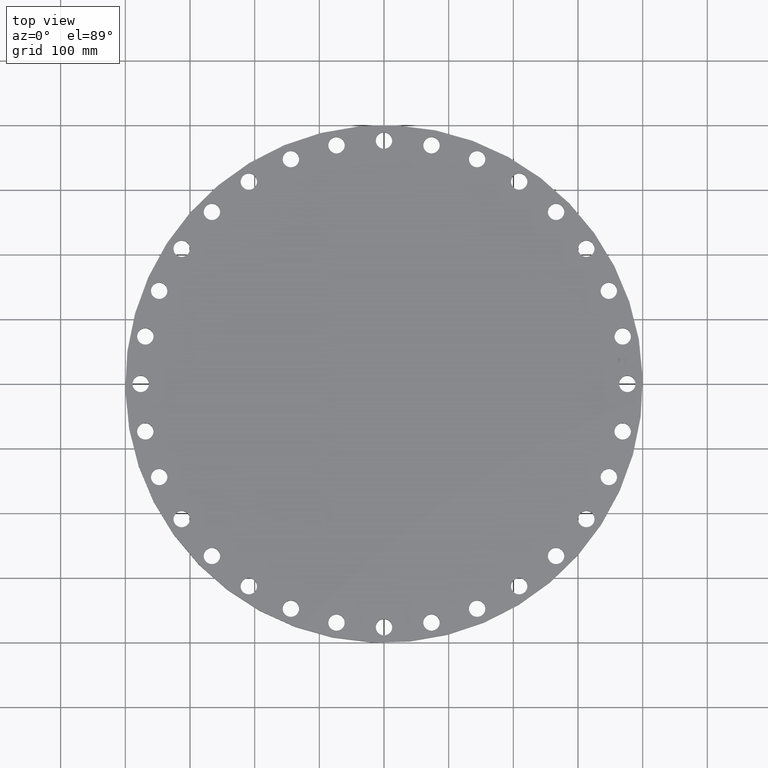
[diagram: clean part render]
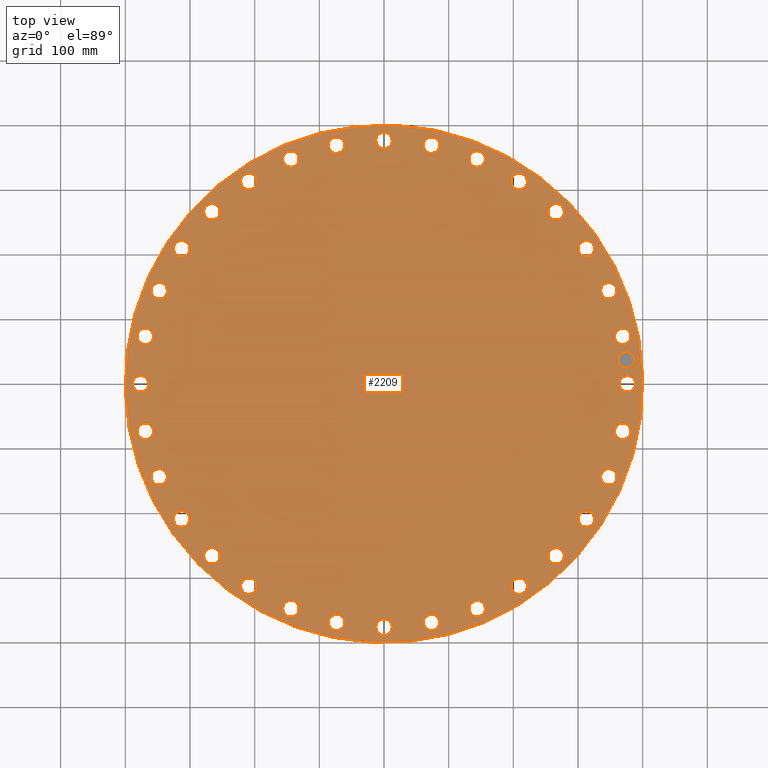
[diagram: same view with one face highlighted and labeled with its STEP entity id]
A machine part, top view. The second image highlights one B-rep face of the part: STEP entity #2209.
In plain terms, the highlighted planar face has unit normal (0, 0, -1).
Its self-contained STEP definition (entity closure, byte-faithful):
#65=AXIS2_PLACEMENT_3D('Circle Axis2P3D',#63,#64,$) ;
#82=AXIS2_PLACEMENT_3D('Circle Axis2P3D',#80,#81,$) ;
#115=AXIS2_PLACEMENT_3D('Circle Axis2P3D',#113,#114,$) ;
#139=AXIS2_PLACEMENT_3D('Circle Axis2P3D',#137,#138,$) ;
#742=AXIS2_PLACEMENT_3D('Circle Axis2P3D',#740,#741,$) ;
#754=AXIS2_PLACEMENT_3D('Circle Axis2P3D',#752,#753,$) ;
#785=AXIS2_PLACEMENT_3D('Circle Axis2P3D',#783,#784,$) ;
#797=AXIS2_PLACEMENT_3D('Circle Axis2P3D',#795,#796,$) ;
#828=AXIS2_PLACEMENT_3D('Circle Axis2P3D',#826,#827,$) ;
#840=AXIS2_PLACEMENT_3D('Circle Axis2P3D',#838,#839,$) ;
#871=AXIS2_PLACEMENT_3D('Circle Axis2P3D',#869,#870,$) ;
#883=AXIS2_PLACEMENT_3D('Circle Axis2P3D',#881,#882,$) ;
#914=AXIS2_PLACEMENT_3D('Circle Axis2P3D',#912,#913,$) ;
#926=AXIS2_PLACEMENT_3D('Circle Axis2P3D',#924,#925,$) ;
#957=AXIS2_PLACEMENT_3D('Circle Axis2P3D',#955,#956,$) ;
#969=AXIS2_PLACEMENT_3D('Circle Axis2P3D',#967,#968,$) ;
#1000=AXIS2_PLACEMENT_3D('Circle Axis2P3D',#998,#999,$) ;
#1012=AXIS2_PLACEMENT_3D('Circle Axis2P3D',#1010,#1011,$) ;
#1043=AXIS2_PLACEMENT_3D('Circle Axis2P3D',#1041,#1042,$) ;
#1055=AXIS2_PLACEMENT_3D('Circle Axis2P3D',#1053,#1054,$) ;
#1086=AXIS2_PLACEMENT_3D('Circle Axis2P3D',#1084,#1085,$) ;
#1098=AXIS2_PLACEMENT_3D('Circle Axis2P3D',#1096,#1097,$) ;
#1129=AXIS2_PLACEMENT_3D('Circle Axis2P3D',#1127,#1128,$) ;
#1141=AXIS2_PLACEMENT_3D('Circle Axis2P3D',#1139,#1140,$) ;
#1172=AXIS2_PLACEMENT_3D('Circle Axis2P3D',#1170,#1171,$) ;
#1184=AXIS2_PLACEMENT_3D('Circle Axis2P3D',#1182,#1183,$) ;
#1215=AXIS2_PLACEMENT_3D('Circle Axis2P3D',#1213,#1214,$) ;
#1227=AXIS2_PLACEMENT_3D('Circle Axis2P3D',#1225,#1226,$) ;
#1258=AXIS2_PLACEMENT_3D('Circle Axis2P3D',#1256,#1257,$) ;
#1270=AXIS2_PLACEMENT_3D('Circle Axis2P3D',#1268,#1269,$) ;
#1301=AXIS2_PLACEMENT_3D('Circle Axis2P3D',#1299,#1300,$) ;
#1313=AXIS2_PLACEMENT_3D('Circle Axis2P3D',#1311,#1312,$) ;
#1344=AXIS2_PLACEMENT_3D('Circle Axis2P3D',#1342,#1343,$) ;
#1356=AXIS2_PLACEMENT_3D('Circle Axis2P3D',#1354,#1355,$) ;
#1387=AXIS2_PLACEMENT_3D('Circle Axis2P3D',#1385,#1386,$) ;
#1399=AXIS2_PLACEMENT_3D('Circle Axis2P3D',#1397,#1398,$) ;
#1430=AXIS2_PLACEMENT_3D('Circle Axis2P3D',#1428,#1429,$) ;
#1442=AXIS2_PLACEMENT_3D('Circle Axis2P3D',#1440,#1441,$) ;
#1473=AXIS2_PLACEMENT_3D('Circle Axis2P3D',#1471,#1472,$) ;
#1485=AXIS2_PLACEMENT_3D('Circle Axis2P3D',#1483,#1484,$) ;
#1516=AXIS2_PLACEMENT_3D('Circle Axis2P3D',#1514,#1515,$) ;
#1528=AXIS2_PLACEMENT_3D('Circle Axis2P3D',#1526,#1527,$) ;
#1559=AXIS2_PLACEMENT_3D('Circle Axis2P3D',#1557,#1558,$) ;
#1571=AXIS2_PLACEMENT_3D('Circle Axis2P3D',#1569,#1570,$) ;
#1602=AXIS2_PLACEMENT_3D('Circle Axis2P3D',#1600,#1601,$) ;
#1614=AXIS2_PLACEMENT_3D('Circle Axis2P3D',#1612,#1613,$) ;
#1645=AXIS2_PLACEMENT_3D('Circle Axis2P3D',#1643,#1644,$) ;
#1657=AXIS2_PLACEMENT_3D('Circle Axis2P3D',#1655,#1656,$) ;
#1688=AXIS2_PLACEMENT_3D('Circle Axis2P3D',#1686,#1687,$) ;
#1700=AXIS2_PLACEMENT_3D('Circle Axis2P3D',#1698,#1699,$) ;
#1731=AXIS2_PLACEMENT_3D('Circle Axis2P3D',#1729,#1730,$) ;
#1743=AXIS2_PLACEMENT_3D('Circle Axis2P3D',#1741,#1742,$) ;
#1774=AXIS2_PLACEMENT_3D('Circle Axis2P3D',#1772,#1773,$) ;
#1786=AXIS2_PLACEMENT_3D('Circle Axis2P3D',#1784,#1785,$) ;
#1817=AXIS2_PLACEMENT_3D('Circle Axis2P3D',#1815,#1816,$) ;
#1829=AXIS2_PLACEMENT_3D('Circle Axis2P3D',#1827,#1828,$) ;
#1860=AXIS2_PLACEMENT_3D('Circle Axis2P3D',#1858,#1859,$) ;
#1872=AXIS2_PLACEMENT_3D('Circle Axis2P3D',#1870,#1871,$) ;
#1903=AXIS2_PLACEMENT_3D('Circle Axis2P3D',#1901,#1902,$) ;
#1915=AXIS2_PLACEMENT_3D('Circle Axis2P3D',#1913,#1914,$) ;
#1946=AXIS2_PLACEMENT_3D('Circle Axis2P3D',#1944,#1945,$) ;
#1958=AXIS2_PLACEMENT_3D('Circle Axis2P3D',#1956,#1957,$) ;
#1989=AXIS2_PLACEMENT_3D('Circle Axis2P3D',#1987,#1988,$) ;
#2001=AXIS2_PLACEMENT_3D('Circle Axis2P3D',#1999,#2000,$) ;
#2032=AXIS2_PLACEMENT_3D('Circle Axis2P3D',#2030,#2031,$) ;
#2044=AXIS2_PLACEMENT_3D('Circle Axis2P3D',#2042,#2043,$) ;
#2057=AXIS2_PLACEMENT_3D('Plane Axis2P3D',#2054,#2055,#2056) ;
#2193=AXIS2_PLACEMENT_3D('Circle Axis2P3D',#2191,#2192,$) ;
#2202=AXIS2_PLACEMENT_3D('Circle Axis2P3D',#2200,#2201,$) ;
#46=CARTESIAN_POINT('Vertex',(14.3762087191,0.239712769303,1.25000000001)) ;
#60=CARTESIAN_POINT('Vertex',(15.253791281,-0.239712769303,1.25000000001)) ;
#63=CARTESIAN_POINT('Axis2P3D Location',(14.8150000001,0.,1.25000000001)) ;
#80=CARTESIAN_POINT('Axis2P3D Location',(14.8150000001,0.,1.25000000001)) ;
#110=CARTESIAN_POINT('Vertex',(7.55095223305,13.8219253498,1.25000000001)) ;
#113=CARTESIAN_POINT('Axis2P3D Location',(0.,0.,1.25000000001)) ;
#117=CARTESIAN_POINT('Vertex',(-7.55095223305,-13.8219253498,1.25000000001)) ;
#137=CARTESIAN_POINT('Axis2P3D Location',(0.,0.,1.25000000001)) ;
#730=CARTESIAN_POINT('Vertex',(-14.1467395411,2.56955243273,1.25000000001)) ;
#737=CARTESIAN_POINT('Vertex',(-14.9139283174,3.21097380864,1.25000000001)) ;
#740=CARTESIAN_POINT('Axis2P3D Location',(-14.5303339292,2.89026312068,1.25000000001)) ;
#752=CARTESIAN_POINT('Axis2P3D Location',(-14.5303339292,2.89026312068,1.25000000001)) ;
#773=CARTESIAN_POINT('Vertex',(13.373619096,-5.28007117579,1.25000000001)) ;
#780=CARTESIAN_POINT('Vertex',(14.0009314524,-6.05883892524,1.25000000001)) ;
#783=CARTESIAN_POINT('Axis2P3D Location',(13.6872752742,-5.66945505051,1.25000000001)) ;
#795=CARTESIAN_POINT('Axis2P3D Location',(13.6872752742,-5.66945505051,1.25000000001)) ;
#816=CARTESIAN_POINT('Vertex',(-13.373619096,5.28007117579,1.25000000001)) ;
#823=CARTESIAN_POINT('Vertex',(-14.0009314524,6.05883892524,1.25000000001)) ;
#826=CARTESIAN_POINT('Axis2P3D Location',(-13.6872752742,5.66945505051,1.25000000001)) ;
#838=CARTESIAN_POINT('Axis2P3D Location',(-13.6872752742,5.66945505051,1.25000000001)) ;
#859=CARTESIAN_POINT('Vertex',(12.0865579692,-7.78767974466,1.25000000001)) ;
#866=CARTESIAN_POINT('Vertex',(12.5498866435,-8.67386625978,1.25000000001)) ;
#869=CARTESIAN_POINT('Axis2P3D Location',(12.3182223063,-8.23077300222,1.25000000001)) ;
#881=CARTESIAN_POINT('Axis2P3D Location',(12.3182223063,-8.23077300222,1.25000000001)) ;
#902=CARTESIAN_POINT('Vertex',(-12.0865579692,7.78767974466,1.25000000001)) ;
#909=CARTESIAN_POINT('Vertex',(-12.5498866435,8.67386625978,1.25000000001)) ;
#912=CARTESIAN_POINT('Axis2P3D Location',(-12.3182223063,8.23077300222,1.25000000001)) ;
#924=CARTESIAN_POINT('Axis2P3D Location',(-12.3182223063,8.23077300222,1.25000000001)) ;
#945=CARTESIAN_POINT('Vertex',(10.3350171977,-9.99601214833,1.25000000001)) ;
#952=CARTESIAN_POINT('Vertex',(10.6165567289,-10.9555617783,1.25000000001)) ;
#955=CARTESIAN_POINT('Axis2P3D Location',(10.4757869633,-10.4757869633,1.25000000001)) ;
#967=CARTESIAN_POINT('Axis2P3D Location',(10.4757869633,-10.4757869633,1.25000000001)) ;
#988=CARTESIAN_POINT('Vertex',(-10.3350171977,9.99601214833,1.25000000001)) ;
#995=CARTESIAN_POINT('Vertex',(-10.6165567289,10.9555617783,1.25000000001)) ;
#998=CARTESIAN_POINT('Axis2P3D Location',(-10.4757869633,10.4757869633,1.25000000001)) ;
#1010=CARTESIAN_POINT('Axis2P3D Location',(-10.4757869633,10.4757869633,1.25000000001)) ;
#1031=CARTESIAN_POINT('Vertex',(8.18630751137,-11.820203411,1.25000000001)) ;
#1038=CARTESIAN_POINT('Vertex',(8.27523849306,-12.8162412017,1.25000000001)) ;
#1041=CARTESIAN_POINT('Axis2P3D Location',(8.23077300222,-12.3182223063,1.25000000001)) ;
#1053=CARTESIAN_POINT('Axis2P3D Location',(8.23077300222,-12.3182223063,1.25000000001)) ;
#1074=CARTESIAN_POINT('Vertex',(-8.18630751137,11.820203411,1.25000000001)) ;
#1081=CARTESIAN_POINT('Vertex',(-8.27523849306,12.8162412017,1.25000000001)) ;
#1084=CARTESIAN_POINT('Axis2P3D Location',(-8.23077300222,12.3182223063,1.25000000001)) ;
#1096=CARTESIAN_POINT('Axis2P3D Location',(-8.23077300222,12.3182223063,1.25000000001)) ;
#1117=CARTESIAN_POINT('Vertex',(5.72300261827,-13.1901508854,1.25000000001)) ;
#1124=CARTESIAN_POINT('Vertex',(5.61590748276,-14.1843996631,1.25000000001)) ;
#1127=CARTESIAN_POINT('Axis2P3D Location',(5.66945505051,-13.6872752742,1.25000000001)) ;
#1139=CARTESIAN_POINT('Axis2P3D Location',(5.66945505051,-13.6872752742,1.25000000001)) ;
#1160=CARTESIAN_POINT('Vertex',(-5.72300261827,13.1901508854,1.25000000001)) ;
#1167=CARTESIAN_POINT('Vertex',(-5.61590748276,14.1843996631,1.25000000001)) ;
#1170=CARTESIAN_POINT('Axis2P3D Location',(-5.66945505051,13.6872752742,1.25000000001)) ;
#1182=CARTESIAN_POINT('Axis2P3D Location',(-5.66945505051,13.6872752742,1.25000000001)) ;
#1203=CARTESIAN_POINT('Vertex',(3.03976594404,-14.0532082584,1.25000000001)) ;
#1210=CARTESIAN_POINT('Vertex',(2.74076029732,-15.0074596001,1.25000000001)) ;
#1213=CARTESIAN_POINT('Axis2P3D Location',(2.89026312068,-14.5303339292,1.25000000001)) ;
#1225=CARTESIAN_POINT('Axis2P3D Location',(2.89026312068,-14.5303339292,1.25000000001)) ;
#1246=CARTESIAN_POINT('Vertex',(-3.03976594404,14.0532082584,1.25000000001)) ;
#1253=CARTESIAN_POINT('Vertex',(-2.74076029732,15.0074596001,1.25000000001)) ;
#1256=CARTESIAN_POINT('Axis2P3D Location',(-2.89026312068,14.5303339292,1.25000000001)) ;
#1268=CARTESIAN_POINT('Axis2P3D Location',(-2.89026312068,14.5303339292,1.25000000001)) ;
#1289=CARTESIAN_POINT('Vertex',(0.239712769303,-14.3762087191,1.25000000001)) ;
#1296=CARTESIAN_POINT('Vertex',(-0.239712769303,-15.253791281,1.25000000001)) ;
#1299=CARTESIAN_POINT('Axis2P3D Location',(-1.33077275994E-015,-14.8150000001,1.25000000001)) ;
#1311=CARTESIAN_POINT('Axis2P3D Location',(-1.33077275994E-015,-14.8150000001,1.25000000001)) ;
#1332=CARTESIAN_POINT('Vertex',(-0.239712769303,14.3762087191,1.25000000001)) ;
#1339=CARTESIAN_POINT('Vertex',(0.239712769303,15.253791281,1.25000000001)) ;
#1342=CARTESIAN_POINT('Axis2P3D Location',(-2.72147134942E-015,14.8150000001,1.25000000001)) ;
#1354=CARTESIAN_POINT('Axis2P3D Location',(-2.72147134942E-015,14.8150000001,1.25000000001)) ;
#1375=CARTESIAN_POINT('Vertex',(-2.56955243273,-14.1467395411,1.25000000001)) ;
#1382=CARTESIAN_POINT('Vertex',(-3.21097380864,-14.9139283174,1.25000000001)) ;
#1385=CARTESIAN_POINT('Axis2P3D Location',(-2.89026312068,-14.5303339292,1.25000000001)) ;
#1397=CARTESIAN_POINT('Axis2P3D Location',(-2.89026312068,-14.5303339292,1.25000000001)) ;
#1418=CARTESIAN_POINT('Vertex',(2.56955243273,14.1467395411,1.25000000001)) ;
#1425=CARTESIAN_POINT('Vertex',(3.21097380864,14.9139283174,1.25000000001)) ;
#1428=CARTESIAN_POINT('Axis2P3D Location',(2.89026312068,14.5303339292,1.25000000001)) ;
#1440=CARTESIAN_POINT('Axis2P3D Location',(2.89026312068,14.5303339292,1.25000000001)) ;
#1461=CARTESIAN_POINT('Vertex',(-5.28007117579,-13.373619096,1.25000000001)) ;
#1468=CARTESIAN_POINT('Vertex',(-6.05883892524,-14.0009314524,1.25000000001)) ;
#1471=CARTESIAN_POINT('Axis2P3D Location',(-5.66945505051,-13.6872752742,1.25000000001)) ;
#1483=CARTESIAN_POINT('Axis2P3D Location',(-5.66945505051,-13.6872752742,1.25000000001)) ;
#1504=CARTESIAN_POINT('Vertex',(5.28007117579,13.373619096,1.25000000001)) ;
#1511=CARTESIAN_POINT('Vertex',(6.05883892524,14.0009314524,1.25000000001)) ;
#1514=CARTESIAN_POINT('Axis2P3D Location',(5.66945505051,13.6872752742,1.25000000001)) ;
#1526=CARTESIAN_POINT('Axis2P3D Location',(5.66945505051,13.6872752742,1.25000000001)) ;
#1547=CARTESIAN_POINT('Vertex',(-7.78767974466,-12.0865579692,1.25000000001)) ;
#1554=CARTESIAN_POINT('Vertex',(-8.67386625978,-12.5498866435,1.25000000001)) ;
#1557=CARTESIAN_POINT('Axis2P3D Location',(-8.23077300222,-12.3182223063,1.25000000001)) ;
#1569=CARTESIAN_POINT('Axis2P3D Location',(-8.23077300222,-12.3182223063,1.25000000001)) ;
#1590=CARTESIAN_POINT('Vertex',(7.78767974466,12.0865579692,1.25000000001)) ;
#1597=CARTESIAN_POINT('Vertex',(8.67386625978,12.5498866435,1.25000000001)) ;
#1600=CARTESIAN_POINT('Axis2P3D Location',(8.23077300222,12.3182223063,1.25000000001)) ;
#1612=CARTESIAN_POINT('Axis2P3D Location',(8.23077300222,12.3182223063,1.25000000001)) ;
#1633=CARTESIAN_POINT('Vertex',(-9.99601214833,-10.3350171977,1.25000000001)) ;
#1640=CARTESIAN_POINT('Vertex',(-10.9555617783,-10.6165567289,1.25000000001)) ;
#1643=CARTESIAN_POINT('Axis2P3D Location',(-10.4757869633,-10.4757869633,1.25000000001)) ;
#1655=CARTESIAN_POINT('Axis2P3D Location',(-10.4757869633,-10.4757869633,1.25000000001)) ;
#1676=CARTESIAN_POINT('Vertex',(9.99601214833,10.3350171977,1.25000000001)) ;
#1683=CARTESIAN_POINT('Vertex',(10.9555617783,10.6165567289,1.25000000001)) ;
#1686=CARTESIAN_POINT('Axis2P3D Location',(10.4757869633,10.4757869633,1.25000000001)) ;
#1698=CARTESIAN_POINT('Axis2P3D Location',(10.4757869633,10.4757869633,1.25000000001)) ;
#1719=CARTESIAN_POINT('Vertex',(-11.820203411,-8.18630751137,1.25000000001)) ;
#1726=CARTESIAN_POINT('Vertex',(-12.8162412017,-8.27523849306,1.25000000001)) ;
#1729=CARTESIAN_POINT('Axis2P3D Location',(-12.3182223063,-8.23077300222,1.25000000001)) ;
#1741=CARTESIAN_POINT('Axis2P3D Location',(-12.3182223063,-8.23077300222,1.25000000001)) ;
#1762=CARTESIAN_POINT('Vertex',(11.820203411,8.18630751137,1.25000000001)) ;
#1769=CARTESIAN_POINT('Vertex',(12.8162412017,8.27523849306,1.25000000001)) ;
#1772=CARTESIAN_POINT('Axis2P3D Location',(12.3182223063,8.23077300222,1.25000000001)) ;
#1784=CARTESIAN_POINT('Axis2P3D Location',(12.3182223063,8.23077300222,1.25000000001)) ;
#1805=CARTESIAN_POINT('Vertex',(-13.1901508854,-5.72300261827,1.25000000001)) ;
#1812=CARTESIAN_POINT('Vertex',(-14.1843996631,-5.61590748276,1.25000000001)) ;
#1815=CARTESIAN_POINT('Axis2P3D Location',(-13.6872752742,-5.66945505051,1.25000000001)) ;
#1827=CARTESIAN_POINT('Axis2P3D Location',(-13.6872752742,-5.66945505051,1.25000000001)) ;
#1848=CARTESIAN_POINT('Vertex',(13.1901508854,5.72300261827,1.25000000001)) ;
#1855=CARTESIAN_POINT('Vertex',(14.1843996631,5.61590748276,1.25000000001)) ;
#1858=CARTESIAN_POINT('Axis2P3D Location',(13.6872752742,5.66945505051,1.25000000001)) ;
#1870=CARTESIAN_POINT('Axis2P3D Location',(13.6872752742,5.66945505051,1.25000000001)) ;
#1891=CARTESIAN_POINT('Vertex',(-14.0532082584,-3.03976594404,1.25000000001)) ;
#1898=CARTESIAN_POINT('Vertex',(-15.0074596001,-2.74076029732,1.25000000001)) ;
#1901=CARTESIAN_POINT('Axis2P3D Location',(-14.5303339292,-2.89026312068,1.25000000001)) ;
#1913=CARTESIAN_POINT('Axis2P3D Location',(-14.5303339292,-2.89026312068,1.25000000001)) ;
#1934=CARTESIAN_POINT('Vertex',(14.0532082584,3.03976594404,1.25000000001)) ;
#1941=CARTESIAN_POINT('Vertex',(15.0074596001,2.74076029732,1.25000000001)) ;
#1944=CARTESIAN_POINT('Axis2P3D Location',(14.5303339292,2.89026312068,1.25000000001)) ;
#1956=CARTESIAN_POINT('Axis2P3D Location',(14.5303339292,2.89026312068,1.25000000001)) ;
#1977=CARTESIAN_POINT('Vertex',(-14.3762087191,-0.239712769303,1.25000000001)) ;
#1984=CARTESIAN_POINT('Vertex',(-15.253791281,0.239712769303,1.25000000001)) ;
#1987=CARTESIAN_POINT('Axis2P3D Location',(-14.8150000001,-1.81431423294E-015,1.25000000001)) ;
#1999=CARTESIAN_POINT('Axis2P3D Location',(-14.8150000001,-1.81431423294E-015,1.25000000001)) ;
#2020=CARTESIAN_POINT('Vertex',(14.1467395411,-2.56955243273,1.25000000001)) ;
#2027=CARTESIAN_POINT('Vertex',(14.9139283174,-3.21097380864,1.25000000001)) ;
#2030=CARTESIAN_POINT('Axis2P3D Location',(14.5303339292,-2.89026312068,1.25000000001)) ;
#2042=CARTESIAN_POINT('Axis2P3D Location',(14.5303339292,-2.89026312068,1.25000000001)) ;
#2054=CARTESIAN_POINT('Axis2P3D Location',(0.,15.7500000001,1.25000000001)) ;
#2191=CARTESIAN_POINT('Axis2P3D Location',(14.7436617257,1.45212393399,1.25000000001)) ;
#2195=CARTESIAN_POINT('Vertex',(14.6946531555,1.94971629733,1.25000000001)) ;
#2197=CARTESIAN_POINT('Vertex',(14.7926702959,0.95453157065,1.25000000001)) ;
#2200=CARTESIAN_POINT('Axis2P3D Location',(14.7436617257,1.45212393399,1.25000000001)) ;
#64=DIRECTION('Axis2P3D Direction',(0.,-0.,-0.0393700787402)) ;
#81=DIRECTION('Axis2P3D Direction',(0.,-0.,-0.0393700787402)) ;
#114=DIRECTION('Axis2P3D Direction',(0.,0.,-0.0393700787402)) ;
#138=DIRECTION('Axis2P3D Direction',(0.,0.,-0.0393700787402)) ;
#741=DIRECTION('Axis2P3D Direction',(0.,0.,-0.0393700787402)) ;
#753=DIRECTION('Axis2P3D Direction',(0.,0.,-0.0393700787402)) ;
#784=DIRECTION('Axis2P3D Direction',(0.,-0.,-0.0393700787402)) ;
#796=DIRECTION('Axis2P3D Direction',(0.,-0.,-0.0393700787402)) ;
#827=DIRECTION('Axis2P3D Direction',(0.,0.,-0.0393700787402)) ;
#839=DIRECTION('Axis2P3D Direction',(0.,0.,-0.0393700787402)) ;
#870=DIRECTION('Axis2P3D Direction',(0.,-0.,-0.0393700787402)) ;
#882=DIRECTION('Axis2P3D Direction',(0.,-0.,-0.0393700787402)) ;
#913=DIRECTION('Axis2P3D Direction',(0.,0.,-0.0393700787402)) ;
#925=DIRECTION('Axis2P3D Direction',(0.,0.,-0.0393700787402)) ;
#956=DIRECTION('Axis2P3D Direction',(0.,-0.,-0.0393700787402)) ;
#968=DIRECTION('Axis2P3D Direction',(0.,-0.,-0.0393700787402)) ;
#999=DIRECTION('Axis2P3D Direction',(0.,0.,-0.0393700787402)) ;
#1011=DIRECTION('Axis2P3D Direction',(0.,0.,-0.0393700787402)) ;
#1042=DIRECTION('Axis2P3D Direction',(0.,-0.,-0.0393700787402)) ;
#1054=DIRECTION('Axis2P3D Direction',(0.,-0.,-0.0393700787402)) ;
#1085=DIRECTION('Axis2P3D Direction',(0.,0.,-0.0393700787402)) ;
#1097=DIRECTION('Axis2P3D Direction',(0.,0.,-0.0393700787402)) ;
#1128=DIRECTION('Axis2P3D Direction',(0.,-0.,-0.0393700787402)) ;
#1140=DIRECTION('Axis2P3D Direction',(0.,-0.,-0.0393700787402)) ;
#1171=DIRECTION('Axis2P3D Direction',(0.,0.,-0.0393700787402)) ;
#1183=DIRECTION('Axis2P3D Direction',(0.,0.,-0.0393700787402)) ;
#1214=DIRECTION('Axis2P3D Direction',(0.,-0.,-0.0393700787402)) ;
#1226=DIRECTION('Axis2P3D Direction',(0.,-0.,-0.0393700787402)) ;
#1257=DIRECTION('Axis2P3D Direction',(0.,0.,-0.0393700787402)) ;
#1269=DIRECTION('Axis2P3D Direction',(0.,0.,-0.0393700787402)) ;
#1300=DIRECTION('Axis2P3D Direction',(0.,-0.,-0.0393700787402)) ;
#1312=DIRECTION('Axis2P3D Direction',(0.,-0.,-0.0393700787402)) ;
#1343=DIRECTION('Axis2P3D Direction',(0.,0.,-0.0393700787402)) ;
#1355=DIRECTION('Axis2P3D Direction',(0.,0.,-0.0393700787402)) ;
#1386=DIRECTION('Axis2P3D Direction',(-0.,0.,-0.0393700787402)) ;
#1398=DIRECTION('Axis2P3D Direction',(-0.,0.,-0.0393700787402)) ;
#1429=DIRECTION('Axis2P3D Direction',(0.,0.,-0.0393700787402)) ;
#1441=DIRECTION('Axis2P3D Direction',(0.,0.,-0.0393700787402)) ;
#1472=DIRECTION('Axis2P3D Direction',(-0.,0.,-0.0393700787402)) ;
#1484=DIRECTION('Axis2P3D Direction',(-0.,0.,-0.0393700787402)) ;
#1515=DIRECTION('Axis2P3D Direction',(0.,0.,-0.0393700787402)) ;
#1527=DIRECTION('Axis2P3D Direction',(0.,0.,-0.0393700787402)) ;
#1558=DIRECTION('Axis2P3D Direction',(-0.,0.,-0.0393700787402)) ;
#1570=DIRECTION('Axis2P3D Direction',(-0.,0.,-0.0393700787402)) ;
#1601=DIRECTION('Axis2P3D Direction',(0.,0.,-0.0393700787402)) ;
#1613=DIRECTION('Axis2P3D Direction',(0.,0.,-0.0393700787402)) ;
#1644=DIRECTION('Axis2P3D Direction',(-0.,0.,-0.0393700787402)) ;
#1656=DIRECTION('Axis2P3D Direction',(-0.,0.,-0.0393700787402)) ;
#1687=DIRECTION('Axis2P3D Direction',(0.,0.,-0.0393700787402)) ;
#1699=DIRECTION('Axis2P3D Direction',(0.,0.,-0.0393700787402)) ;
#1730=DIRECTION('Axis2P3D Direction',(-0.,0.,-0.0393700787402)) ;
#1742=DIRECTION('Axis2P3D Direction',(-0.,0.,-0.0393700787402)) ;
#1773=DIRECTION('Axis2P3D Direction',(0.,0.,-0.0393700787402)) ;
#1785=DIRECTION('Axis2P3D Direction',(0.,0.,-0.0393700787402)) ;
#1816=DIRECTION('Axis2P3D Direction',(-0.,0.,-0.0393700787402)) ;
#1828=DIRECTION('Axis2P3D Direction',(-0.,0.,-0.0393700787402)) ;
#1859=DIRECTION('Axis2P3D Direction',(0.,0.,-0.0393700787402)) ;
#1871=DIRECTION('Axis2P3D Direction',(0.,0.,-0.0393700787402)) ;
#1902=DIRECTION('Axis2P3D Direction',(-0.,0.,-0.0393700787402)) ;
#1914=DIRECTION('Axis2P3D Direction',(-0.,0.,-0.0393700787402)) ;
#1945=DIRECTION('Axis2P3D Direction',(0.,0.,-0.0393700787402)) ;
#1957=DIRECTION('Axis2P3D Direction',(0.,0.,-0.0393700787402)) ;
#1988=DIRECTION('Axis2P3D Direction',(-0.,0.,-0.0393700787402)) ;
#2000=DIRECTION('Axis2P3D Direction',(-0.,0.,-0.0393700787402)) ;
#2031=DIRECTION('Axis2P3D Direction',(0.,-0.,-0.0393700787402)) ;
#2043=DIRECTION('Axis2P3D Direction',(0.,-0.,-0.0393700787402)) ;
#2055=DIRECTION('Axis2P3D Direction',(0.,0.,-0.0393700787402)) ;
#2056=DIRECTION('Axis2P3D XDirection',(0.0393700787402,0.,0.)) ;
#2192=DIRECTION('Axis2P3D Direction',(0.,0.,-0.0393700787402)) ;
#2201=DIRECTION('Axis2P3D Direction',(0.,0.,-0.0393700787402)) ;
#2060=ORIENTED_EDGE('',*,*,#119,.F.) ;
#2061=ORIENTED_EDGE('',*,*,#141,.F.) ;
#2064=ORIENTED_EDGE('',*,*,#67,.T.) ;
#2065=ORIENTED_EDGE('',*,*,#84,.T.) ;
#2068=ORIENTED_EDGE('',*,*,#2046,.T.) ;
#2069=ORIENTED_EDGE('',*,*,#2034,.T.) ;
#2072=ORIENTED_EDGE('',*,*,#799,.T.) ;
#2073=ORIENTED_EDGE('',*,*,#787,.T.) ;
#2076=ORIENTED_EDGE('',*,*,#885,.T.) ;
#2077=ORIENTED_EDGE('',*,*,#873,.T.) ;
#2080=ORIENTED_EDGE('',*,*,#971,.T.) ;
#2081=ORIENTED_EDGE('',*,*,#959,.T.) ;
#2084=ORIENTED_EDGE('',*,*,#1057,.T.) ;
#2085=ORIENTED_EDGE('',*,*,#1045,.T.) ;
#2088=ORIENTED_EDGE('',*,*,#1143,.T.) ;
#2089=ORIENTED_EDGE('',*,*,#1131,.T.) ;
#2092=ORIENTED_EDGE('',*,*,#1229,.T.) ;
#2093=ORIENTED_EDGE('',*,*,#1217,.T.) ;
#2096=ORIENTED_EDGE('',*,*,#1315,.T.) ;
#2097=ORIENTED_EDGE('',*,*,#1303,.T.) ;
#2100=ORIENTED_EDGE('',*,*,#1401,.T.) ;
#2101=ORIENTED_EDGE('',*,*,#1389,.T.) ;
#2104=ORIENTED_EDGE('',*,*,#1487,.T.) ;
#2105=ORIENTED_EDGE('',*,*,#1475,.T.) ;
#2108=ORIENTED_EDGE('',*,*,#1573,.T.) ;
#2109=ORIENTED_EDGE('',*,*,#1561,.T.) ;
#2112=ORIENTED_EDGE('',*,*,#1659,.T.) ;
#2113=ORIENTED_EDGE('',*,*,#1647,.T.) ;
#2116=ORIENTED_EDGE('',*,*,#1745,.T.) ;
#2117=ORIENTED_EDGE('',*,*,#1733,.T.) ;
#2120=ORIENTED_EDGE('',*,*,#1831,.T.) ;
#2121=ORIENTED_EDGE('',*,*,#1819,.T.) ;
#2124=ORIENTED_EDGE('',*,*,#1917,.T.) ;
#2125=ORIENTED_EDGE('',*,*,#1905,.T.) ;
#2128=ORIENTED_EDGE('',*,*,#2003,.T.) ;
#2129=ORIENTED_EDGE('',*,*,#1991,.T.) ;
#2132=ORIENTED_EDGE('',*,*,#756,.T.) ;
#2133=ORIENTED_EDGE('',*,*,#744,.T.) ;
#2136=ORIENTED_EDGE('',*,*,#842,.T.) ;
#2137=ORIENTED_EDGE('',*,*,#830,.T.) ;
#2140=ORIENTED_EDGE('',*,*,#928,.T.) ;
#2141=ORIENTED_EDGE('',*,*,#916,.T.) ;
#2144=ORIENTED_EDGE('',*,*,#1014,.T.) ;
#2145=ORIENTED_EDGE('',*,*,#1002,.T.) ;
#2148=ORIENTED_EDGE('',*,*,#1100,.T.) ;
#2149=ORIENTED_EDGE('',*,*,#1088,.T.) ;
#2152=ORIENTED_EDGE('',*,*,#1186,.T.) ;
#2153=ORIENTED_EDGE('',*,*,#1174,.T.) ;
#2156=ORIENTED_EDGE('',*,*,#1272,.T.) ;
#2157=ORIENTED_EDGE('',*,*,#1260,.T.) ;
#2160=ORIENTED_EDGE('',*,*,#1358,.T.) ;
#2161=ORIENTED_EDGE('',*,*,#1346,.T.) ;
#2164=ORIENTED_EDGE('',*,*,#1444,.T.) ;
#2165=ORIENTED_EDGE('',*,*,#1432,.T.) ;
#2168=ORIENTED_EDGE('',*,*,#1530,.T.) ;
#2169=ORIENTED_EDGE('',*,*,#1518,.T.) ;
#2172=ORIENTED_EDGE('',*,*,#1616,.T.) ;
#2173=ORIENTED_EDGE('',*,*,#1604,.T.) ;
#2176=ORIENTED_EDGE('',*,*,#1702,.T.) ;
#2177=ORIENTED_EDGE('',*,*,#1690,.T.) ;
#2180=ORIENTED_EDGE('',*,*,#1788,.T.) ;
#2181=ORIENTED_EDGE('',*,*,#1776,.T.) ;
#2184=ORIENTED_EDGE('',*,*,#1874,.T.) ;
#2185=ORIENTED_EDGE('',*,*,#1862,.T.) ;
#2188=ORIENTED_EDGE('',*,*,#1960,.T.) ;
#2189=ORIENTED_EDGE('',*,*,#1948,.T.) ;
#2206=ORIENTED_EDGE('',*,*,#2199,.T.) ;
#2207=ORIENTED_EDGE('',*,*,#2204,.T.) ;
#2066=FACE_BOUND('',#2063,.T.) ;
#2070=FACE_BOUND('',#2067,.T.) ;
#2074=FACE_BOUND('',#2071,.T.) ;
#2078=FACE_BOUND('',#2075,.T.) ;
#2082=FACE_BOUND('',#2079,.T.) ;
#2086=FACE_BOUND('',#2083,.T.) ;
#2090=FACE_BOUND('',#2087,.T.) ;
#2094=FACE_BOUND('',#2091,.T.) ;
#2098=FACE_BOUND('',#2095,.T.) ;
#2102=FACE_BOUND('',#2099,.T.) ;
#2106=FACE_BOUND('',#2103,.T.) ;
#2110=FACE_BOUND('',#2107,.T.) ;
#2114=FACE_BOUND('',#2111,.T.) ;
#2118=FACE_BOUND('',#2115,.T.) ;
#2122=FACE_BOUND('',#2119,.T.) ;
#2126=FACE_BOUND('',#2123,.T.) ;
#2130=FACE_BOUND('',#2127,.T.) ;
#2134=FACE_BOUND('',#2131,.T.) ;
#2138=FACE_BOUND('',#2135,.T.) ;
#2142=FACE_BOUND('',#2139,.T.) ;
#2146=FACE_BOUND('',#2143,.T.) ;
#2150=FACE_BOUND('',#2147,.T.) ;
#2154=FACE_BOUND('',#2151,.T.) ;
#2158=FACE_BOUND('',#2155,.T.) ;
#2162=FACE_BOUND('',#2159,.T.) ;
#2166=FACE_BOUND('',#2163,.T.) ;
#2170=FACE_BOUND('',#2167,.T.) ;
#2174=FACE_BOUND('',#2171,.T.) ;
#2178=FACE_BOUND('',#2175,.T.) ;
#2182=FACE_BOUND('',#2179,.T.) ;
#2186=FACE_BOUND('',#2183,.T.) ;
#2190=FACE_BOUND('',#2187,.T.) ;
#2208=FACE_BOUND('',#2205,.T.) ;
#2209=ADVANCED_FACE('PartBody',(#2062,#2066,#2070,#2074,#2078,#2082,#2086,#2090,#2094,#2098,#2102,#2106,#2110,#2114,#2118,#2122,#2126,#2130,#2134,#2138,#2142,#2146,#2150,#2154,#2158,#2162,#2166,#2170,#2174,#2178,#2182,#2186,#2190,#2208),#2058,.F.) ;
#66=CIRCLE('generated circle',#65,0.500000000002) ;
#83=CIRCLE('generated circle',#82,0.500000000002) ;
#116=CIRCLE('generated circle',#115,15.7500000001) ;
#140=CIRCLE('generated circle',#139,15.7500000001) ;
#743=CIRCLE('generated circle',#742,0.500000000002) ;
#755=CIRCLE('generated circle',#754,0.500000000002) ;
#786=CIRCLE('generated circle',#785,0.500000000002) ;
#798=CIRCLE('generated circle',#797,0.500000000002) ;
#829=CIRCLE('generated circle',#828,0.500000000002) ;
#841=CIRCLE('generated circle',#840,0.500000000002) ;
#872=CIRCLE('generated circle',#871,0.500000000002) ;
#884=CIRCLE('generated circle',#883,0.500000000002) ;
#915=CIRCLE('generated circle',#914,0.500000000002) ;
#927=CIRCLE('generated circle',#926,0.500000000002) ;
#958=CIRCLE('generated circle',#957,0.500000000002) ;
#970=CIRCLE('generated circle',#969,0.500000000002) ;
#1001=CIRCLE('generated circle',#1000,0.500000000002) ;
#1013=CIRCLE('generated circle',#1012,0.500000000002) ;
#1044=CIRCLE('generated circle',#1043,0.500000000002) ;
#1056=CIRCLE('generated circle',#1055,0.500000000002) ;
#1087=CIRCLE('generated circle',#1086,0.500000000002) ;
#1099=CIRCLE('generated circle',#1098,0.500000000002) ;
#1130=CIRCLE('generated circle',#1129,0.500000000002) ;
#1142=CIRCLE('generated circle',#1141,0.500000000002) ;
#1173=CIRCLE('generated circle',#1172,0.500000000002) ;
#1185=CIRCLE('generated circle',#1184,0.500000000002) ;
#1216=CIRCLE('generated circle',#1215,0.500000000002) ;
#1228=CIRCLE('generated circle',#1227,0.500000000002) ;
#1259=CIRCLE('generated circle',#1258,0.500000000002) ;
#1271=CIRCLE('generated circle',#1270,0.500000000002) ;
#1302=CIRCLE('generated circle',#1301,0.500000000002) ;
#1314=CIRCLE('generated circle',#1313,0.500000000002) ;
#1345=CIRCLE('generated circle',#1344,0.500000000002) ;
#1357=CIRCLE('generated circle',#1356,0.500000000002) ;
#1388=CIRCLE('generated circle',#1387,0.500000000002) ;
#1400=CIRCLE('generated circle',#1399,0.500000000002) ;
#1431=CIRCLE('generated circle',#1430,0.500000000002) ;
#1443=CIRCLE('generated circle',#1442,0.500000000002) ;
#1474=CIRCLE('generated circle',#1473,0.500000000002) ;
#1486=CIRCLE('generated circle',#1485,0.500000000002) ;
#1517=CIRCLE('generated circle',#1516,0.500000000002) ;
#1529=CIRCLE('generated circle',#1528,0.500000000002) ;
#1560=CIRCLE('generated circle',#1559,0.500000000002) ;
#1572=CIRCLE('generated circle',#1571,0.500000000002) ;
#1603=CIRCLE('generated circle',#1602,0.500000000002) ;
#1615=CIRCLE('generated circle',#1614,0.500000000002) ;
#1646=CIRCLE('generated circle',#1645,0.500000000002) ;
#1658=CIRCLE('generated circle',#1657,0.500000000002) ;
#1689=CIRCLE('generated circle',#1688,0.500000000002) ;
#1701=CIRCLE('generated circle',#1700,0.500000000002) ;
#1732=CIRCLE('generated circle',#1731,0.500000000002) ;
#1744=CIRCLE('generated circle',#1743,0.500000000002) ;
#1775=CIRCLE('generated circle',#1774,0.500000000002) ;
#1787=CIRCLE('generated circle',#1786,0.500000000002) ;
#1818=CIRCLE('generated circle',#1817,0.500000000002) ;
#1830=CIRCLE('generated circle',#1829,0.500000000002) ;
#1861=CIRCLE('generated circle',#1860,0.500000000002) ;
#1873=CIRCLE('generated circle',#1872,0.500000000002) ;
#1904=CIRCLE('generated circle',#1903,0.500000000002) ;
#1916=CIRCLE('generated circle',#1915,0.500000000002) ;
#1947=CIRCLE('generated circle',#1946,0.500000000002) ;
#1959=CIRCLE('generated circle',#1958,0.500000000002) ;
#1990=CIRCLE('generated circle',#1989,0.500000000002) ;
#2002=CIRCLE('generated circle',#2001,0.500000000002) ;
#2033=CIRCLE('generated circle',#2032,0.500000000002) ;
#2045=CIRCLE('generated circle',#2044,0.500000000002) ;
#2194=CIRCLE('generated circle',#2193,0.500000000002) ;
#2203=CIRCLE('generated circle',#2202,0.500000000002) ;
#67=EDGE_CURVE('',#47,#61,#66,.T.) ;
#84=EDGE_CURVE('',#61,#47,#83,.T.) ;
#119=EDGE_CURVE('',#111,#118,#116,.T.) ;
#141=EDGE_CURVE('',#118,#111,#140,.T.) ;
#744=EDGE_CURVE('',#731,#738,#743,.T.) ;
#756=EDGE_CURVE('',#738,#731,#755,.T.) ;
#787=EDGE_CURVE('',#774,#781,#786,.T.) ;
#799=EDGE_CURVE('',#781,#774,#798,.T.) ;
#830=EDGE_CURVE('',#817,#824,#829,.T.) ;
#842=EDGE_CURVE('',#824,#817,#841,.T.) ;
#873=EDGE_CURVE('',#860,#867,#872,.T.) ;
#885=EDGE_CURVE('',#867,#860,#884,.T.) ;
#916=EDGE_CURVE('',#903,#910,#915,.T.) ;
#928=EDGE_CURVE('',#910,#903,#927,.T.) ;
#959=EDGE_CURVE('',#946,#953,#958,.T.) ;
#971=EDGE_CURVE('',#953,#946,#970,.T.) ;
#1002=EDGE_CURVE('',#989,#996,#1001,.T.) ;
#1014=EDGE_CURVE('',#996,#989,#1013,.T.) ;
#1045=EDGE_CURVE('',#1032,#1039,#1044,.T.) ;
#1057=EDGE_CURVE('',#1039,#1032,#1056,.T.) ;
#1088=EDGE_CURVE('',#1075,#1082,#1087,.T.) ;
#1100=EDGE_CURVE('',#1082,#1075,#1099,.T.) ;
#1131=EDGE_CURVE('',#1118,#1125,#1130,.T.) ;
#1143=EDGE_CURVE('',#1125,#1118,#1142,.T.) ;
#1174=EDGE_CURVE('',#1161,#1168,#1173,.T.) ;
#1186=EDGE_CURVE('',#1168,#1161,#1185,.T.) ;
#1217=EDGE_CURVE('',#1204,#1211,#1216,.T.) ;
#1229=EDGE_CURVE('',#1211,#1204,#1228,.T.) ;
#1260=EDGE_CURVE('',#1247,#1254,#1259,.T.) ;
#1272=EDGE_CURVE('',#1254,#1247,#1271,.T.) ;
#1303=EDGE_CURVE('',#1290,#1297,#1302,.T.) ;
#1315=EDGE_CURVE('',#1297,#1290,#1314,.T.) ;
#1346=EDGE_CURVE('',#1333,#1340,#1345,.T.) ;
#1358=EDGE_CURVE('',#1340,#1333,#1357,.T.) ;
#1389=EDGE_CURVE('',#1376,#1383,#1388,.T.) ;
#1401=EDGE_CURVE('',#1383,#1376,#1400,.T.) ;
#1432=EDGE_CURVE('',#1419,#1426,#1431,.T.) ;
#1444=EDGE_CURVE('',#1426,#1419,#1443,.T.) ;
#1475=EDGE_CURVE('',#1462,#1469,#1474,.T.) ;
#1487=EDGE_CURVE('',#1469,#1462,#1486,.T.) ;
#1518=EDGE_CURVE('',#1505,#1512,#1517,.T.) ;
#1530=EDGE_CURVE('',#1512,#1505,#1529,.T.) ;
#1561=EDGE_CURVE('',#1548,#1555,#1560,.T.) ;
#1573=EDGE_CURVE('',#1555,#1548,#1572,.T.) ;
#1604=EDGE_CURVE('',#1591,#1598,#1603,.T.) ;
#1616=EDGE_CURVE('',#1598,#1591,#1615,.T.) ;
#1647=EDGE_CURVE('',#1634,#1641,#1646,.T.) ;
#1659=EDGE_CURVE('',#1641,#1634,#1658,.T.) ;
#1690=EDGE_CURVE('',#1677,#1684,#1689,.T.) ;
#1702=EDGE_CURVE('',#1684,#1677,#1701,.T.) ;
#1733=EDGE_CURVE('',#1720,#1727,#1732,.T.) ;
#1745=EDGE_CURVE('',#1727,#1720,#1744,.T.) ;
#1776=EDGE_CURVE('',#1763,#1770,#1775,.T.) ;
#1788=EDGE_CURVE('',#1770,#1763,#1787,.T.) ;
#1819=EDGE_CURVE('',#1806,#1813,#1818,.T.) ;
#1831=EDGE_CURVE('',#1813,#1806,#1830,.T.) ;
#1862=EDGE_CURVE('',#1849,#1856,#1861,.T.) ;
#1874=EDGE_CURVE('',#1856,#1849,#1873,.T.) ;
#1905=EDGE_CURVE('',#1892,#1899,#1904,.T.) ;
#1917=EDGE_CURVE('',#1899,#1892,#1916,.T.) ;
#1948=EDGE_CURVE('',#1935,#1942,#1947,.T.) ;
#1960=EDGE_CURVE('',#1942,#1935,#1959,.T.) ;
#1991=EDGE_CURVE('',#1978,#1985,#1990,.T.) ;
#2003=EDGE_CURVE('',#1985,#1978,#2002,.T.) ;
#2034=EDGE_CURVE('',#2021,#2028,#2033,.T.) ;
#2046=EDGE_CURVE('',#2028,#2021,#2045,.T.) ;
#2199=EDGE_CURVE('',#2196,#2198,#2194,.T.) ;
#2204=EDGE_CURVE('',#2198,#2196,#2203,.T.) ;
#2059=EDGE_LOOP('',(#2060,#2061)) ;
#2063=EDGE_LOOP('',(#2064,#2065)) ;
#2067=EDGE_LOOP('',(#2068,#2069)) ;
#2071=EDGE_LOOP('',(#2072,#2073)) ;
#2075=EDGE_LOOP('',(#2076,#2077)) ;
#2079=EDGE_LOOP('',(#2080,#2081)) ;
#2083=EDGE_LOOP('',(#2084,#2085)) ;
#2087=EDGE_LOOP('',(#2088,#2089)) ;
#2091=EDGE_LOOP('',(#2092,#2093)) ;
#2095=EDGE_LOOP('',(#2096,#2097)) ;
#2099=EDGE_LOOP('',(#2100,#2101)) ;
#2103=EDGE_LOOP('',(#2104,#2105)) ;
#2107=EDGE_LOOP('',(#2108,#2109)) ;
#2111=EDGE_LOOP('',(#2112,#2113)) ;
#2115=EDGE_LOOP('',(#2116,#2117)) ;
#2119=EDGE_LOOP('',(#2120,#2121)) ;
#2123=EDGE_LOOP('',(#2124,#2125)) ;
#2127=EDGE_LOOP('',(#2128,#2129)) ;
#2131=EDGE_LOOP('',(#2132,#2133)) ;
#2135=EDGE_LOOP('',(#2136,#2137)) ;
#2139=EDGE_LOOP('',(#2140,#2141)) ;
#2143=EDGE_LOOP('',(#2144,#2145)) ;
#2147=EDGE_LOOP('',(#2148,#2149)) ;
#2151=EDGE_LOOP('',(#2152,#2153)) ;
#2155=EDGE_LOOP('',(#2156,#2157)) ;
#2159=EDGE_LOOP('',(#2160,#2161)) ;
#2163=EDGE_LOOP('',(#2164,#2165)) ;
#2167=EDGE_LOOP('',(#2168,#2169)) ;
#2171=EDGE_LOOP('',(#2172,#2173)) ;
#2175=EDGE_LOOP('',(#2176,#2177)) ;
#2179=EDGE_LOOP('',(#2180,#2181)) ;
#2183=EDGE_LOOP('',(#2184,#2185)) ;
#2187=EDGE_LOOP('',(#2188,#2189)) ;
#2205=EDGE_LOOP('',(#2206,#2207)) ;
#2062=FACE_OUTER_BOUND('',#2059,.T.) ;
#2058=PLANE('',#2057) ;
#47=VERTEX_POINT('',#46) ;
#61=VERTEX_POINT('',#60) ;
#111=VERTEX_POINT('',#110) ;
#118=VERTEX_POINT('',#117) ;
#731=VERTEX_POINT('',#730) ;
#738=VERTEX_POINT('',#737) ;
#774=VERTEX_POINT('',#773) ;
#781=VERTEX_POINT('',#780) ;
#817=VERTEX_POINT('',#816) ;
#824=VERTEX_POINT('',#823) ;
#860=VERTEX_POINT('',#859) ;
#867=VERTEX_POINT('',#866) ;
#903=VERTEX_POINT('',#902) ;
#910=VERTEX_POINT('',#909) ;
#946=VERTEX_POINT('',#945) ;
#953=VERTEX_POINT('',#952) ;
#989=VERTEX_POINT('',#988) ;
#996=VERTEX_POINT('',#995) ;
#1032=VERTEX_POINT('',#1031) ;
#1039=VERTEX_POINT('',#1038) ;
#1075=VERTEX_POINT('',#1074) ;
#1082=VERTEX_POINT('',#1081) ;
#1118=VERTEX_POINT('',#1117) ;
#1125=VERTEX_POINT('',#1124) ;
#1161=VERTEX_POINT('',#1160) ;
#1168=VERTEX_POINT('',#1167) ;
#1204=VERTEX_POINT('',#1203) ;
#1211=VERTEX_POINT('',#1210) ;
#1247=VERTEX_POINT('',#1246) ;
#1254=VERTEX_POINT('',#1253) ;
#1290=VERTEX_POINT('',#1289) ;
#1297=VERTEX_POINT('',#1296) ;
#1333=VERTEX_POINT('',#1332) ;
#1340=VERTEX_POINT('',#1339) ;
#1376=VERTEX_POINT('',#1375) ;
#1383=VERTEX_POINT('',#1382) ;
#1419=VERTEX_POINT('',#1418) ;
#1426=VERTEX_POINT('',#1425) ;
#1462=VERTEX_POINT('',#1461) ;
#1469=VERTEX_POINT('',#1468) ;
#1505=VERTEX_POINT('',#1504) ;
#1512=VERTEX_POINT('',#1511) ;
#1548=VERTEX_POINT('',#1547) ;
#1555=VERTEX_POINT('',#1554) ;
#1591=VERTEX_POINT('',#1590) ;
#1598=VERTEX_POINT('',#1597) ;
#1634=VERTEX_POINT('',#1633) ;
#1641=VERTEX_POINT('',#1640) ;
#1677=VERTEX_POINT('',#1676) ;
#1684=VERTEX_POINT('',#1683) ;
#1720=VERTEX_POINT('',#1719) ;
#1727=VERTEX_POINT('',#1726) ;
#1763=VERTEX_POINT('',#1762) ;
#1770=VERTEX_POINT('',#1769) ;
#1806=VERTEX_POINT('',#1805) ;
#1813=VERTEX_POINT('',#1812) ;
#1849=VERTEX_POINT('',#1848) ;
#1856=VERTEX_POINT('',#1855) ;
#1892=VERTEX_POINT('',#1891) ;
#1899=VERTEX_POINT('',#1898) ;
#1935=VERTEX_POINT('',#1934) ;
#1942=VERTEX_POINT('',#1941) ;
#1978=VERTEX_POINT('',#1977) ;
#1985=VERTEX_POINT('',#1984) ;
#2021=VERTEX_POINT('',#2020) ;
#2028=VERTEX_POINT('',#2027) ;
#2196=VERTEX_POINT('',#2195) ;
#2198=VERTEX_POINT('',#2197) ;